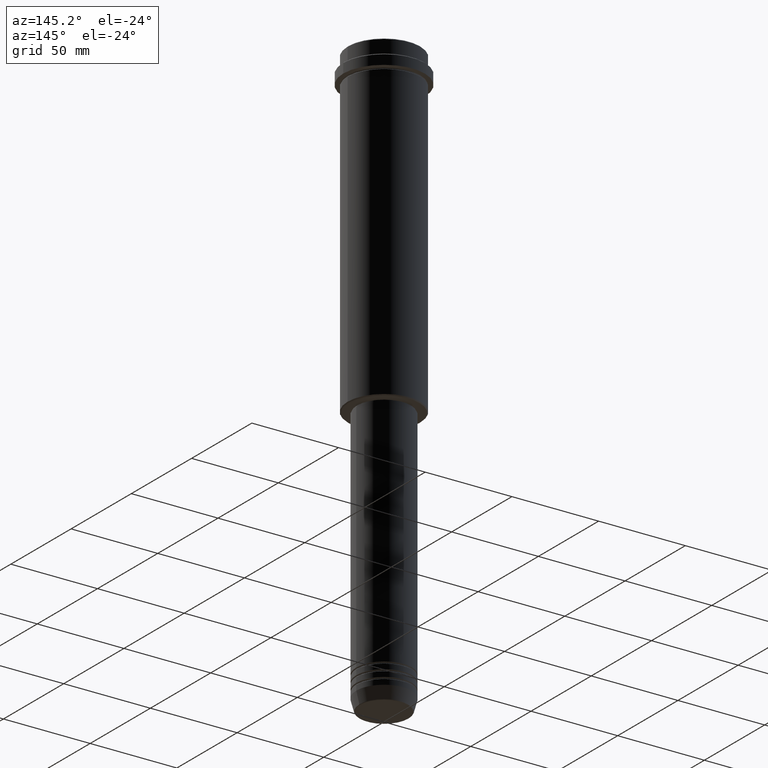
[diagram: clean part render]
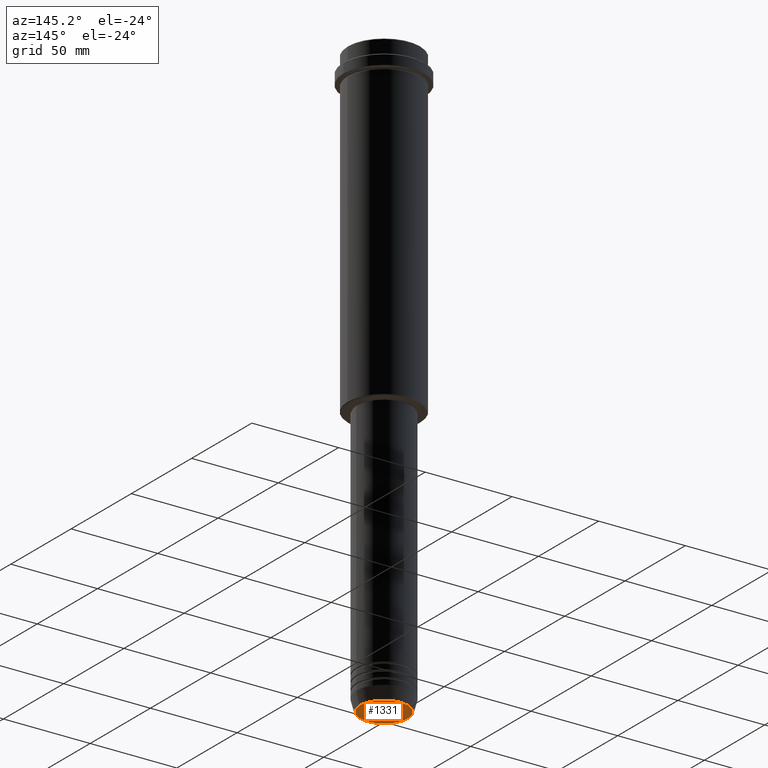
[diagram: same view with one face highlighted and labeled with its STEP entity id]
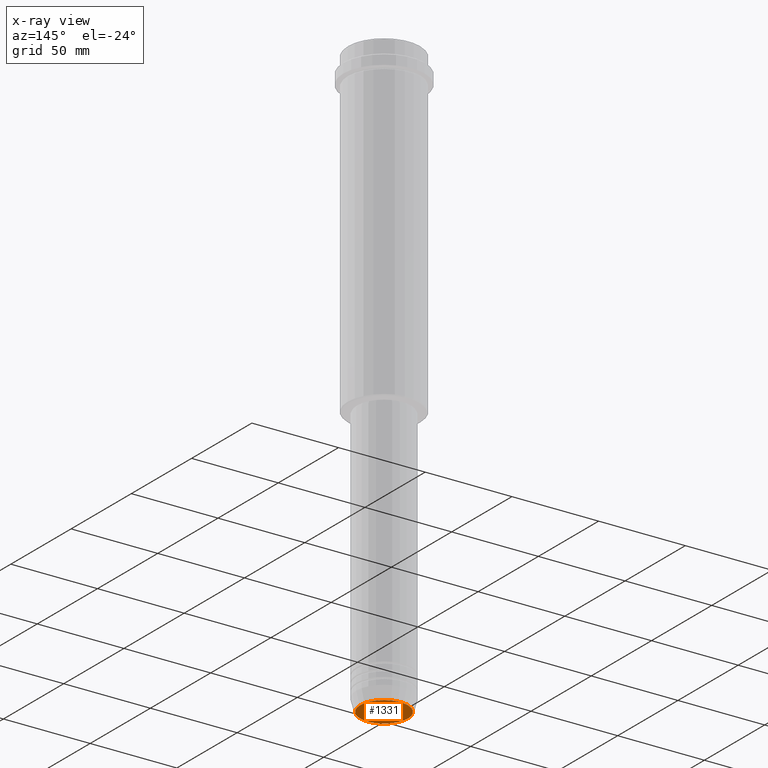
[diagram: x-ray of the same camera — body ghosted, the highlighted face saturated]
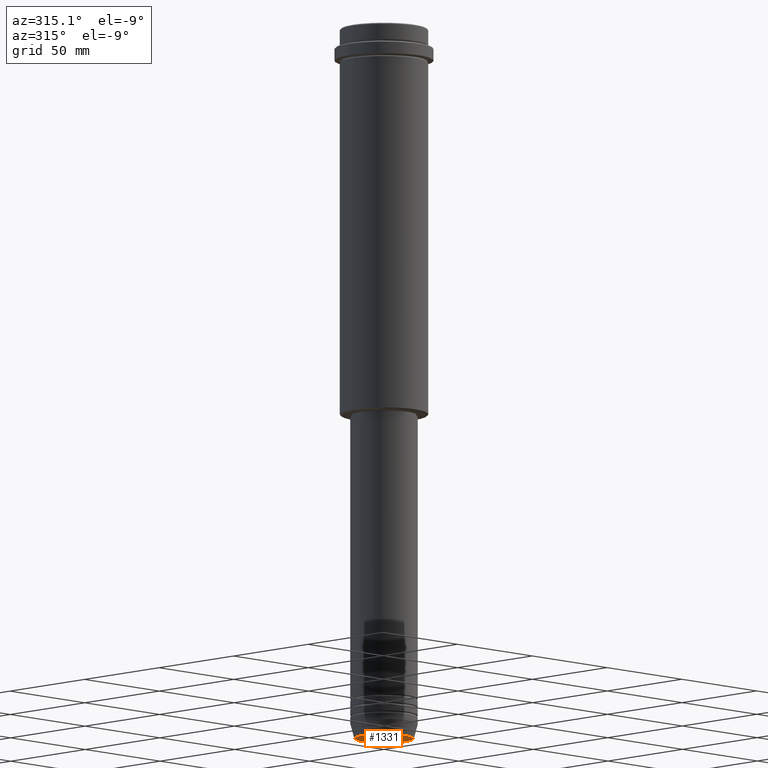
[diagram: same view with one face highlighted and labeled with its STEP entity id]
A machine part, auxiliary view. The second image highlights one B-rep face of the part: STEP entity #1331.
The next image is the same camera in x-ray: the body ghosted, the highlighted face saturated — about 0% of this face is hidden behind the body in this view.
A second angle (auxiliary view) of the same face is appended — the face is thin or edge-on in the first view.
In plain terms, the highlighted planar face has unit normal (0, -0, 1).
Its self-contained STEP definition (entity closure, byte-faithful):
#76 = AXIS2_PLACEMENT_3D ( 'NONE', #1025, #1361, #1243 ) ;
#132 = DIRECTION ( 'NONE',  ( 0.000000000000000000, -0.000000000000000000, 1.000000000000000000 ) ) ;
#153 = EDGE_LOOP ( 'NONE', ( #509, #250 ) ) ;
#250 = ORIENTED_EDGE ( 'NONE', *, *, #1014, .T. ) ;
#319 = CARTESIAN_POINT ( 'NONE',  ( 13.74069215899265828, 0.000000000000000000, -340.0000000000000000 ) ) ;
#416 = DIRECTION ( 'NONE',  ( 1.000000000000000000, 0.000000000000000000, 0.000000000000000000 ) ) ;
#457 = CIRCLE ( 'NONE', #746, 13.74069215899265828 ) ;
#470 = CARTESIAN_POINT ( 'NONE',  ( -13.74069215899265828, 1.712322416342415986E-15, -340.0000000000000000 ) ) ;
#488 = PLANE ( 'NONE',  #1182 ) ;
#509 = ORIENTED_EDGE ( 'NONE', *, *, #732, .T. ) ;
#570 = DIRECTION ( 'NONE',  ( 1.000000000000000000, 0.000000000000000000, 0.000000000000000000 ) ) ;
#610 = VERTEX_POINT ( 'NONE', #319 ) ;
#732 = EDGE_CURVE ( 'NONE', #610, #1224, #1323, .T. ) ;
#746 = AXIS2_PLACEMENT_3D ( 'NONE', #1256, #1394, #416 ) ;
#921 = CARTESIAN_POINT ( 'NONE',  ( 0.000000000000000000, 0.000000000000000000, -340.0000000000000000 ) ) ;
#1014 = EDGE_CURVE ( 'NONE', #1224, #610, #457, .T. ) ;
#1025 = CARTESIAN_POINT ( 'NONE',  ( 0.000000000000000000, 0.000000000000000000, -340.0000000000000000 ) ) ;
#1107 = FACE_OUTER_BOUND ( 'NONE', #153, .T. ) ;
#1182 = AXIS2_PLACEMENT_3D ( 'NONE', #921, #132, #570 ) ;
#1224 = VERTEX_POINT ( 'NONE', #470 ) ;
#1243 = DIRECTION ( 'NONE',  ( 1.000000000000000000, 0.000000000000000000, 0.000000000000000000 ) ) ;
#1256 = CARTESIAN_POINT ( 'NONE',  ( 0.000000000000000000, 0.000000000000000000, -340.0000000000000000 ) ) ;
#1323 = CIRCLE ( 'NONE', #76, 13.74069215899265828 ) ;
#1331 = ADVANCED_FACE ( 'NONE', ( #1107 ), #488, .F. ) ;
#1361 = DIRECTION ( 'NONE',  ( 0.000000000000000000, 0.000000000000000000, -1.000000000000000000 ) ) ;
#1394 = DIRECTION ( 'NONE',  ( 0.000000000000000000, 0.000000000000000000, -1.000000000000000000 ) ) ;